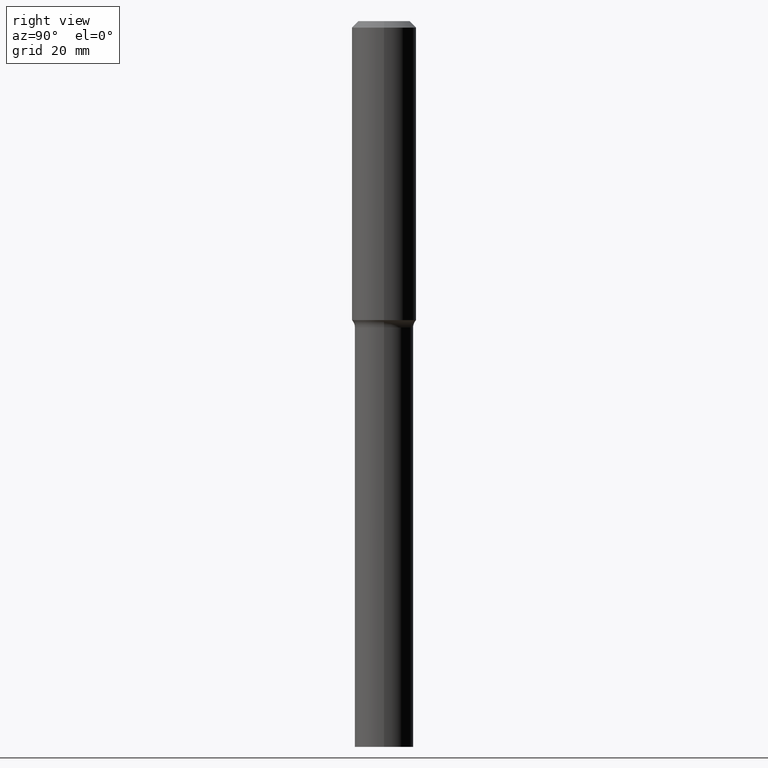
[diagram: clean part render]
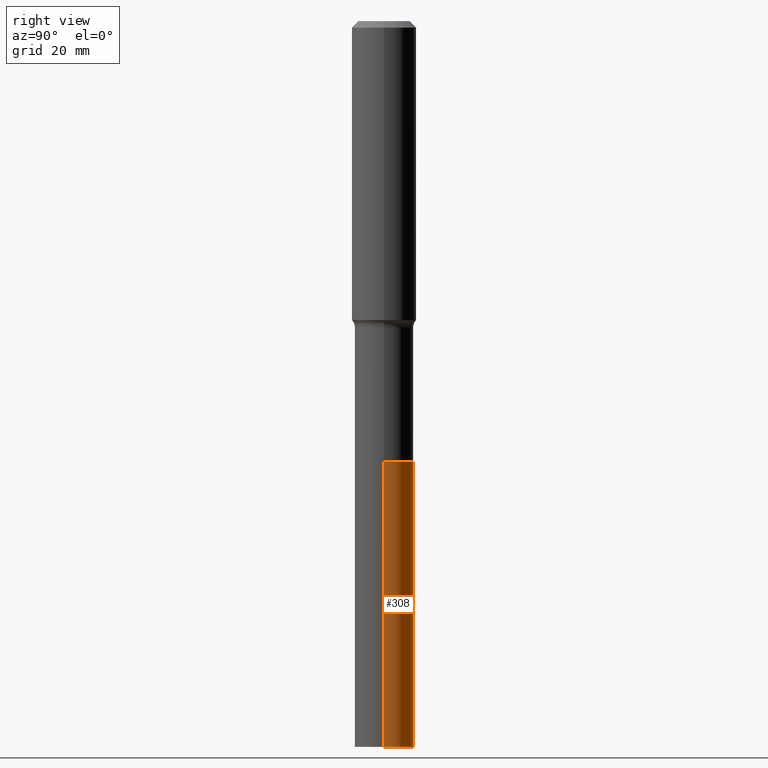
[diagram: same view with one face highlighted and labeled with its STEP entity id]
A machine part, right view. The second image highlights one B-rep face of the part: STEP entity #308.
In plain terms, the highlighted cylindrical surface (edge-blend (fillet) strip) has radius 5.4496 mm, axis along (-0, 0, 1).
Its self-contained STEP definition (entity closure, byte-faithful):
#7 = EDGE_CURVE ( 'NONE', #387, #268, #246, .T. ) ;
#14 = CARTESIAN_POINT ( 'NONE',  ( 0.2145500000000003515, -2.005541795844891010E-14, -5.315000000000000391 ) ) ;
#29 = CARTESIAN_POINT ( 'NONE',  ( 1.299766670487400218E-28, -1.855722331595131973E-14, -5.315000000000000391 ) ) ;
#30 = EDGE_CURVE ( 'NONE', #350, #387, #501, .T. ) ;
#33 = DIRECTION ( 'NONE',  ( 1.000000000000000000, -6.982962677686261977E-15, 0.000000000000000000 ) ) ;
#57 = CARTESIAN_POINT ( 'NONE',  ( -0.2145500000000003793, -1.339113883996461832E-14, -5.315000000000000391 ) ) ;
#92 = CARTESIAN_POINT ( 'NONE',  ( -0.2145499999999999907, -1.339113883996462306E-14, -3.229000000000000981 ) ) ;
#94 = DIRECTION ( 'NONE',  ( 1.000000000000000000, -6.982962677686264344E-15, 0.000000000000000000 ) ) ;
#115 = ORIENTED_EDGE ( 'NONE', *, *, #219, .F. ) ;
#119 = CARTESIAN_POINT ( 'NONE',  ( 0.2145500000000001850, -1.277218788562211007E-14, -3.229000000000000981 ) ) ;
#127 = LINE ( 'NONE', #119, #374 ) ;
#135 = ORIENTED_EDGE ( 'NONE', *, *, #30, .T. ) ;
#136 = DIRECTION ( 'NONE',  ( -2.445468806185136597E-29, 3.491481338843145583E-15, 1.000000000000000000 ) ) ;
#138 = FACE_OUTER_BOUND ( 'NONE', #516, .T. ) ;
#158 = DIRECTION ( 'NONE',  ( -2.445468806185136597E-29, 3.491481338843145583E-15, 1.000000000000000000 ) ) ;
#173 = DIRECTION ( 'NONE',  ( -2.445468806185136877E-29, 3.491481338843145188E-15, 1.000000000000000000 ) ) ;
#197 = ORIENTED_EDGE ( 'NONE', *, *, #312, .F. ) ;
#213 = VECTOR ( 'NONE', #511, 39.37007874015748143 ) ;
#219 = EDGE_CURVE ( 'NONE', #350, #378, #127, .T. ) ;
#246 = LINE ( 'NONE', #472, #213 ) ;
#250 = AXIS2_PLACEMENT_3D ( 'NONE', #29, #158, #33 ) ;
#264 = ORIENTED_EDGE ( 'NONE', *, *, #7, .T. ) ;
#267 = CIRCLE ( 'NONE', #510, 0.2145499999999999907 ) ;
#268 = VERTEX_POINT ( 'NONE', #92 ) ;
#300 = CARTESIAN_POINT ( 'NONE',  ( 7.896418775171807488E-29, -1.127399324312451970E-14, -3.229000000000000981 ) ) ;
#301 = CYLINDRICAL_SURFACE ( 'NONE', #404, 0.2145500000000001850 ) ;
#304 = DIRECTION ( 'NONE',  ( 1.000000000000000000, -6.982962677686267499E-15, 0.000000000000000000 ) ) ;
#308 = ADVANCED_FACE ( 'NONE', ( #138 ), #301, .T. ) ;
#312 = EDGE_CURVE ( 'NONE', #378, #268, #267, .T. ) ;
#345 = DIRECTION ( 'NONE',  ( -2.445468806185136597E-29, 3.491481338843145583E-15, 1.000000000000000000 ) ) ;
#350 = VERTEX_POINT ( 'NONE', #14 ) ;
#374 = VECTOR ( 'NONE', #173, 39.37007874015748143 ) ;
#378 = VERTEX_POINT ( 'NONE', #423 ) ;
#387 = VERTEX_POINT ( 'NONE', #57 ) ;
#404 = AXIS2_PLACEMENT_3D ( 'NONE', #456, #136, #304 ) ;
#423 = CARTESIAN_POINT ( 'NONE',  ( 0.2145499999999999907, -1.277218788562210849E-14, -3.229000000000000981 ) ) ;
#456 = CARTESIAN_POINT ( 'NONE',  ( 7.896418775171807488E-29, -1.127399324312451970E-14, -3.229000000000000981 ) ) ;
#472 = CARTESIAN_POINT ( 'NONE',  ( -0.2145500000000001850, -9.749523803551223040E-15, -3.229000000000000981 ) ) ;
#501 = CIRCLE ( 'NONE', #250, 0.2145500000000003515 ) ;
#510 = AXIS2_PLACEMENT_3D ( 'NONE', #300, #345, #94 ) ;
#511 = DIRECTION ( 'NONE',  ( -2.445468806185136877E-29, 3.491481338843145188E-15, 1.000000000000000000 ) ) ;
#516 = EDGE_LOOP ( 'NONE', ( #135, #264, #197, #115 ) ) ;